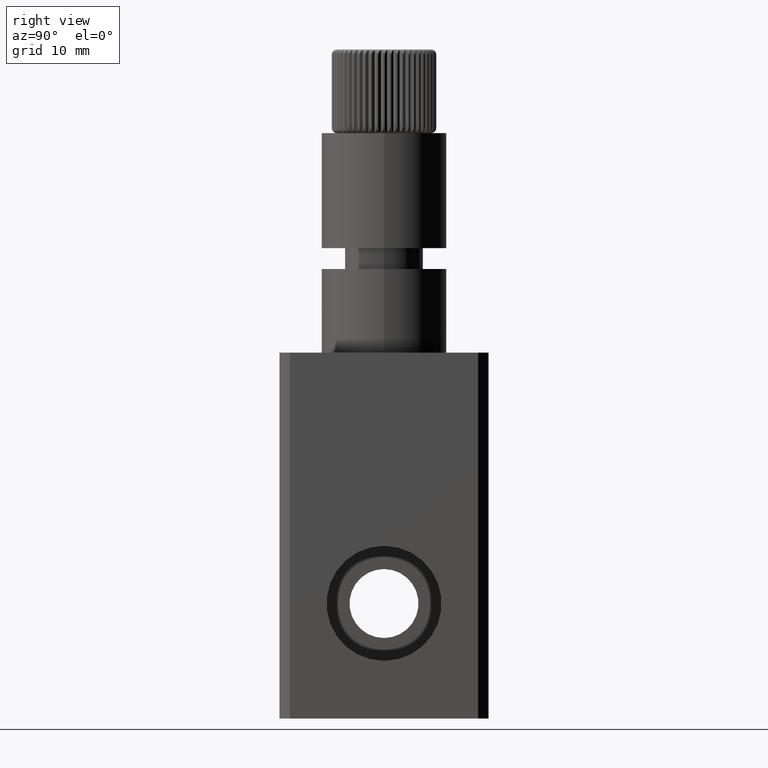
[diagram: clean part render]
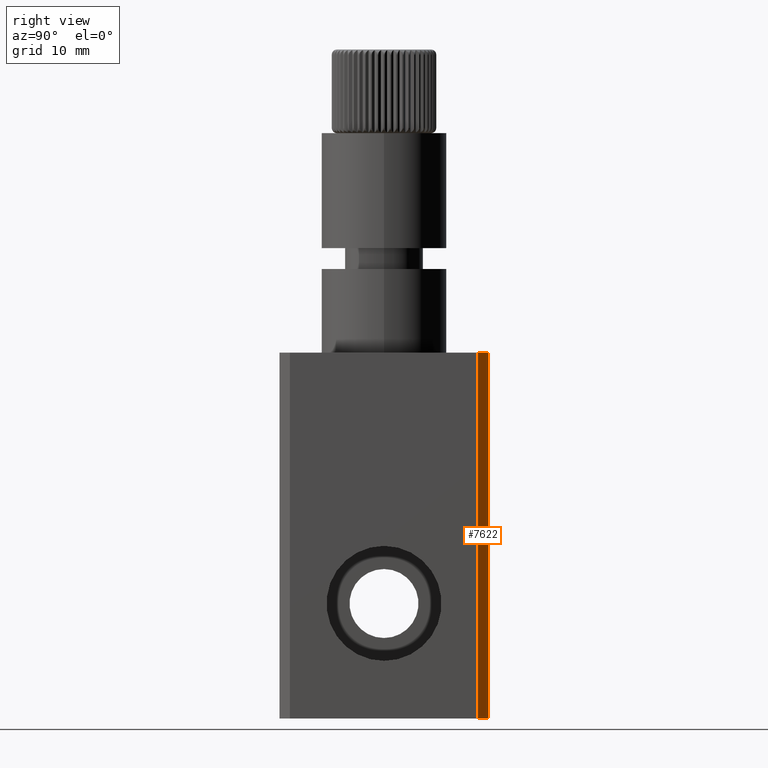
[diagram: same view with one face highlighted and labeled with its STEP entity id]
A machine part, right view. The second image highlights one B-rep face of the part: STEP entity #7622.
In plain terms, the highlighted planar face has unit normal (-0.7071, -0.7071, 0).
Its self-contained STEP definition (entity closure, byte-faithful):
#225 = EDGE_CURVE ( 'NONE', #9207, #10835, #4795, .T. ) ;
#567 = FACE_OUTER_BOUND ( 'NONE', #1237, .T. ) ;
#1076 = DIRECTION ( 'NONE',  ( -0.0000000000000000000, -0.0000000000000000000, -1.000000000000000000 ) ) ;
#1132 = EDGE_CURVE ( 'NONE', #5912, #7320, #4138, .T. ) ;
#1237 = EDGE_LOOP ( 'NONE', ( #6950, #7531, #1729, #9217 ) ) ;
#1729 = ORIENTED_EDGE ( 'NONE', *, *, #3125, .F. ) ;
#1753 = CARTESIAN_POINT ( 'NONE',  ( 10.00000000000001200, 8.999999999999994700, 0.0000000000000000000 ) ) ;
#2428 = DIRECTION ( 'NONE',  ( 0.7071067811865469100, -0.7071067811865482400, 0.0000000000000000000 ) ) ;
#2592 = VECTOR ( 'NONE', #4521, 1000.000000000000000 ) ;
#3125 = EDGE_CURVE ( 'NONE', #5912, #9207, #10475, .T. ) ;
#3678 = CARTESIAN_POINT ( 'NONE',  ( 9.000000000000005300, 10.00000000000000400, 35.00000000000000000 ) ) ;
#3910 = PLANE ( 'NONE',  #5730 ) ;
#4138 = LINE ( 'NONE', #6901, #9701 ) ;
#4521 = DIRECTION ( 'NONE',  ( -0.0000000000000000000, -0.0000000000000000000, -1.000000000000000000 ) ) ;
#4795 = LINE ( 'NONE', #3678, #2592 ) ;
#4963 = DIRECTION ( 'NONE',  ( -0.7071067811865482400, -0.7071067811865469100, 0.0000000000000000000 ) ) ;
#5730 = AXIS2_PLACEMENT_3D ( 'NONE', #10038, #4963, #2428 ) ;
#5912 = VERTEX_POINT ( 'NONE', #8949 ) ;
#6285 = LINE ( 'NONE', #9290, #8003 ) ;
#6901 = CARTESIAN_POINT ( 'NONE',  ( 10.00000000000001200, 8.999999999999994700, 35.00000000000000000 ) ) ;
#6950 = ORIENTED_EDGE ( 'NONE', *, *, #9777, .T. ) ;
#7320 = VERTEX_POINT ( 'NONE', #1753 ) ;
#7531 = ORIENTED_EDGE ( 'NONE', *, *, #225, .F. ) ;
#7622 = ADVANCED_FACE ( 'NONE', ( #567 ), #3910, .F. ) ;
#8003 = VECTOR ( 'NONE', #8598, 999.9999999999998900 ) ;
#8598 = DIRECTION ( 'NONE',  ( -0.7071067811865469100, 0.7071067811865482400, -0.0000000000000000000 ) ) ;
#8749 = DIRECTION ( 'NONE',  ( -0.7071067811865469100, 0.7071067811865482400, -0.0000000000000000000 ) ) ;
#8949 = CARTESIAN_POINT ( 'NONE',  ( 10.00000000000001200, 8.999999999999994700, 35.00000000000000000 ) ) ;
#9182 = CARTESIAN_POINT ( 'NONE',  ( 9.000000000000005300, 10.00000000000000400, 0.0000000000000000000 ) ) ;
#9207 = VERTEX_POINT ( 'NONE', #9240 ) ;
#9217 = ORIENTED_EDGE ( 'NONE', *, *, #1132, .T. ) ;
#9240 = CARTESIAN_POINT ( 'NONE',  ( 9.000000000000005300, 10.00000000000000400, 35.00000000000000000 ) ) ;
#9290 = CARTESIAN_POINT ( 'NONE',  ( 9.000000000000005300, 10.00000000000000400, 0.0000000000000000000 ) ) ;
#9701 = VECTOR ( 'NONE', #1076, 1000.000000000000000 ) ;
#9777 = EDGE_CURVE ( 'NONE', #7320, #10835, #6285, .T. ) ;
#10038 = CARTESIAN_POINT ( 'NONE',  ( 9.000000000000005300, 10.00000000000000400, 35.00000000000000000 ) ) ;
#10194 = VECTOR ( 'NONE', #8749, 999.9999999999998900 ) ;
#10382 = CARTESIAN_POINT ( 'NONE',  ( 9.000000000000005300, 10.00000000000000400, 35.00000000000000000 ) ) ;
#10475 = LINE ( 'NONE', #10382, #10194 ) ;
#10835 = VERTEX_POINT ( 'NONE', #9182 ) ;